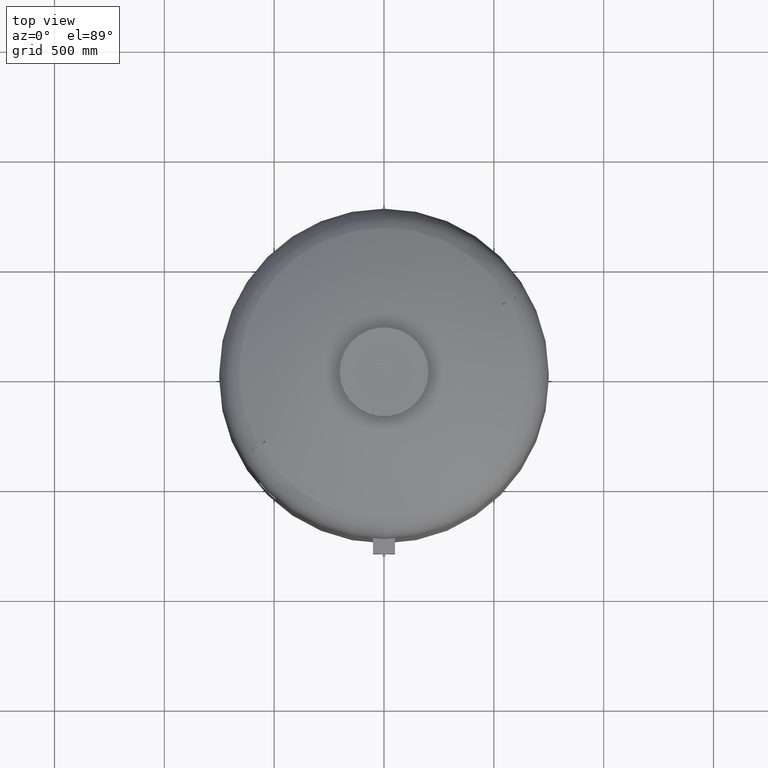
[diagram: clean part render]
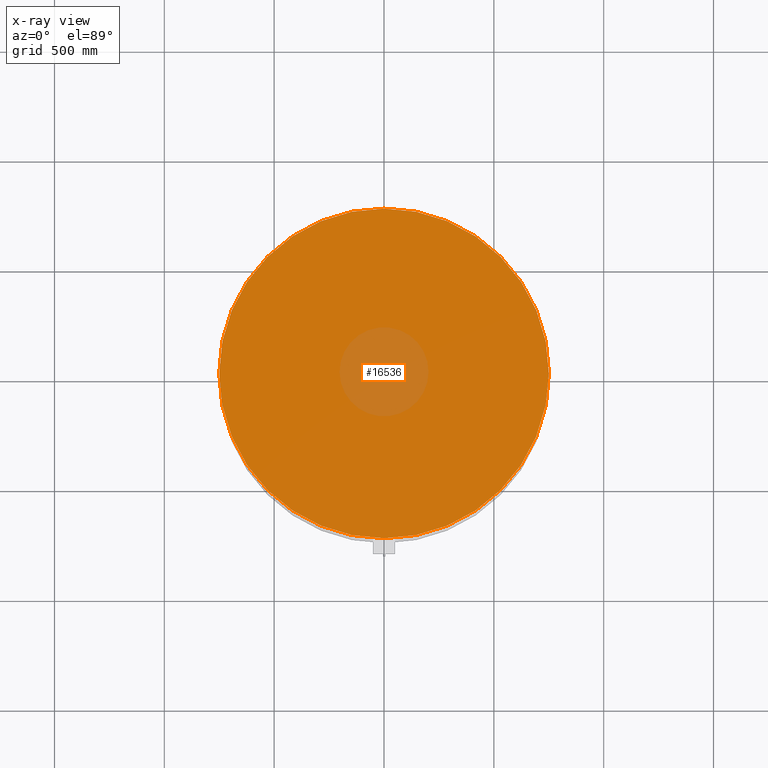
[diagram: x-ray — body ghosted, one internal face saturated and labeled with its STEP entity id]
A machine part, top view, then the same camera in x-ray: the body is ghosted and one INTERNAL B-rep face — a face not visible from any outside direction — is saturated and labeled: STEP entity #16536.
In plain terms, the highlighted planar face has unit normal (0, 0, -1).
Its self-contained STEP definition (entity closure, byte-faithful):
#15795=CARTESIAN_POINT('',(750.0,-6.062002E-014,2096.0));
#15796=VERTEX_POINT('',#15795);
#15805=CARTESIAN_POINT('',(-750.0,3.122546E-014,2096.0));
#15806=VERTEX_POINT('',#15805);
#15807=CARTESIAN_POINT('',(1.631890E-014,-6.062002E-014,2096.0));
#15808=DIRECTION('',(0.0,0.0,-1.0));
#15809=DIRECTION('',(1.0,0.0,0.0));
#15810=AXIS2_PLACEMENT_3D('',#15807,#15808,#15809);
#15811=CIRCLE('',#15810,750.0);
#15812=EDGE_CURVE('',#15806,#15796,#15811,.T.);
#16517=CARTESIAN_POINT('',(1.631890E-014,-6.062002E-014,2096.0));
#16518=DIRECTION('',(0.0,0.0,-1.0));
#16519=DIRECTION('',(1.0,0.0,0.0));
#16520=AXIS2_PLACEMENT_3D('',#16517,#16518,#16519);
#16521=CIRCLE('',#16520,750.0);
#16522=EDGE_CURVE('',#15796,#15806,#16521,.T.);
#16527=CARTESIAN_POINT('',(374.999999999999940,-6.062002E-014,2096.0));
#16528=DIRECTION('',(0.0,0.0,-1.0));
#16529=DIRECTION('',(0.0,-1.0,0.0));
#16530=AXIS2_PLACEMENT_3D('',#16527,#16528,#16529);
#16531=PLANE('',#16530);
#16532=ORIENTED_EDGE('',*,*,#16522,.T.);
#16533=ORIENTED_EDGE('',*,*,#15812,.T.);
#16534=EDGE_LOOP('',(#16532,#16533));
#16535=FACE_OUTER_BOUND('',#16534,.T.);
#16536=ADVANCED_FACE('',(#16535),#16531,.T.);